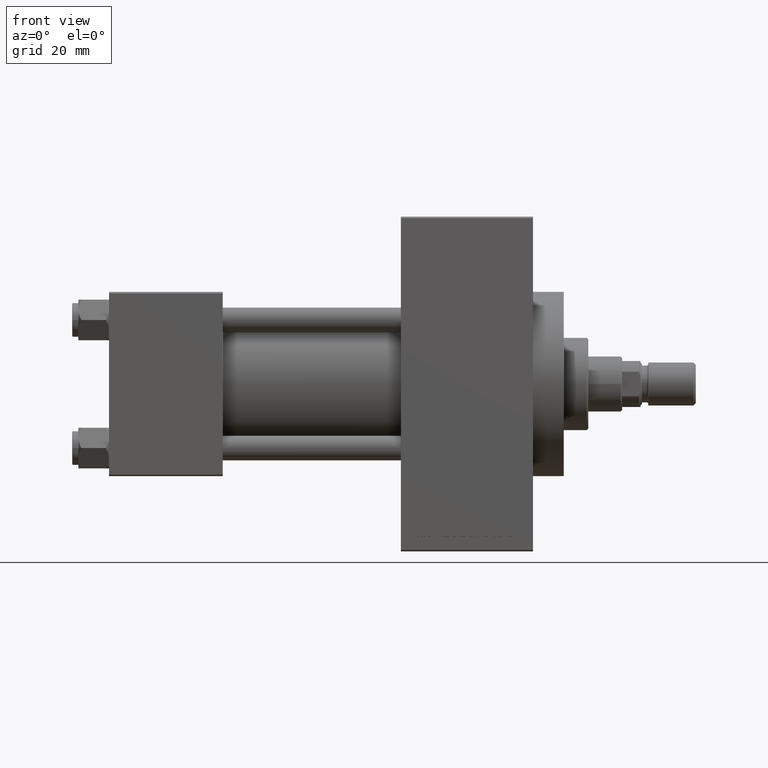
[diagram: clean part render]
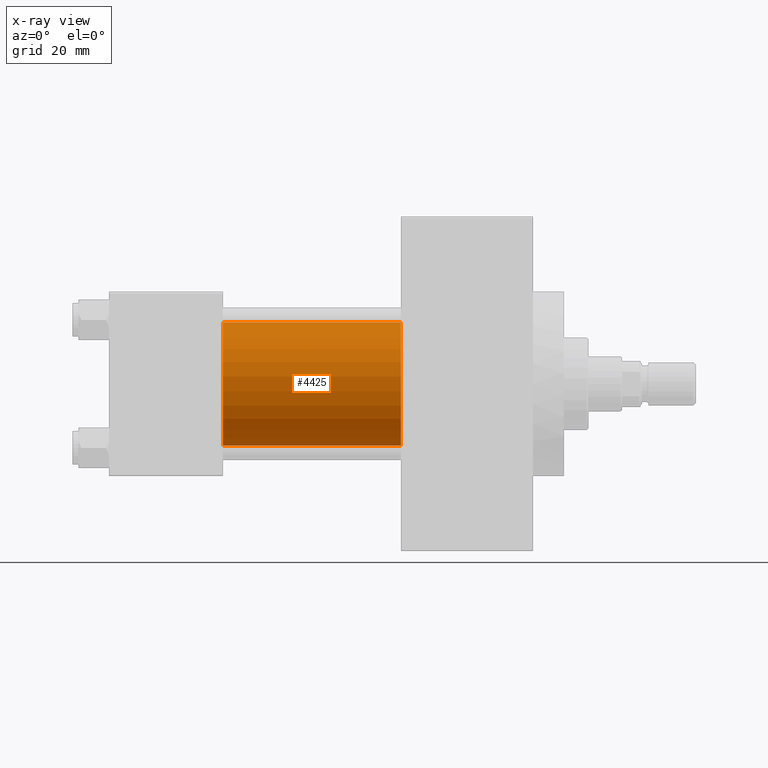
[diagram: x-ray — body ghosted, one internal face saturated and labeled with its STEP entity id]
A machine part, front view, then the same camera in x-ray: the body is ghosted and one INTERNAL B-rep face — a face not visible from any outside direction — is saturated and labeled: STEP entity #4425.
In plain terms, the highlighted cylindrical surface (partial cylindrical patch) has radius 20 mm, axis along (-1, -0, -0).
Its self-contained STEP definition (entity closure, byte-faithful):
#2749 = DIRECTION ( 'NONE',  ( 0.000000000000000000, 0.000000000000000000, -1.000000000000000000 ) ) ;
#3018 = AXIS2_PLACEMENT_3D ( 'NONE', #31827, #24316, #2749 ) ;
#3654 = DIRECTION ( 'NONE',  ( 0.000000000000000000, 0.000000000000000000, 1.000000000000000000 ) ) ;
#3899 = CARTESIAN_POINT ( 'NONE',  ( 95.00000000000000000, -2.602085213965210642E-15, 0.000000000000000000 ) ) ;
#4146 = EDGE_CURVE ( 'NONE', #38251, #31890, #18405, .T. ) ;
#4425 = ADVANCED_FACE ( 'NONE', ( #39983 ), #25446, .F. ) ;
#6608 = ORIENTED_EDGE ( 'NONE', *, *, #27748, .F. ) ;
#6622 = CARTESIAN_POINT ( 'NONE',  ( 95.00000000000000000, -2.602085213965210642E-15, 20.00000000000000000 ) ) ;
#7230 = VERTEX_POINT ( 'NONE', #44675 ) ;
#8568 = VECTOR ( 'NONE', #10489, 1000.000000000000000 ) ;
#9044 = VECTOR ( 'NONE', #22895, 1000.000000000000000 ) ;
#10489 = DIRECTION ( 'NONE',  ( -1.000000000000000000, -0.000000000000000000, -0.000000000000000000 ) ) ;
#12197 = CARTESIAN_POINT ( 'NONE',  ( 37.00000000000000000, -2.602085213965210642E-15, 20.00000000000000000 ) ) ;
#14121 = EDGE_CURVE ( 'NONE', #31890, #7230, #26550, .T. ) ;
#14776 = DIRECTION ( 'NONE',  ( -1.000000000000000000, -0.000000000000000000, -0.000000000000000000 ) ) ;
#15246 = DIRECTION ( 'NONE',  ( 1.000000000000000000, 0.000000000000000000, 0.000000000000000000 ) ) ;
#17097 = AXIS2_PLACEMENT_3D ( 'NONE', #25927, #15246, #40465 ) ;
#18405 = CIRCLE ( 'NONE', #3018, 20.00000000000000000 ) ;
#20391 = CARTESIAN_POINT ( 'NONE',  ( 95.00000000000000000, -1.527916156705046464E-16, -20.00000000000000000 ) ) ;
#22895 = DIRECTION ( 'NONE',  ( -1.000000000000000000, -0.000000000000000000, -0.000000000000000000 ) ) ;
#23708 = EDGE_LOOP ( 'NONE', ( #25210, #36655, #6608, #31749 ) ) ;
#24316 = DIRECTION ( 'NONE',  ( 1.000000000000000000, 0.000000000000000000, 0.000000000000000000 ) ) ;
#25210 = ORIENTED_EDGE ( 'NONE', *, *, #4146, .T. ) ;
#25446 = CYLINDRICAL_SURFACE ( 'NONE', #33931, 20.00000000000000000 ) ;
#25500 = LINE ( 'NONE', #6622, #8568 ) ;
#25927 = CARTESIAN_POINT ( 'NONE',  ( 37.00000000000000000, -2.602085213965210642E-15, 0.000000000000000000 ) ) ;
#26550 = LINE ( 'NONE', #41561, #9044 ) ;
#27278 = EDGE_CURVE ( 'NONE', #38251, #45120, #25500, .T. ) ;
#27748 = EDGE_CURVE ( 'NONE', #45120, #7230, #38766, .T. ) ;
#31749 = ORIENTED_EDGE ( 'NONE', *, *, #27278, .F. ) ;
#31827 = CARTESIAN_POINT ( 'NONE',  ( 95.00000000000000000, -2.602085213965210642E-15, 0.000000000000000000 ) ) ;
#31890 = VERTEX_POINT ( 'NONE', #20391 ) ;
#33931 = AXIS2_PLACEMENT_3D ( 'NONE', #3899, #14776, #3654 ) ;
#36655 = ORIENTED_EDGE ( 'NONE', *, *, #14121, .T. ) ;
#38251 = VERTEX_POINT ( 'NONE', #41439 ) ;
#38766 = CIRCLE ( 'NONE', #17097, 20.00000000000000000 ) ;
#39983 = FACE_OUTER_BOUND ( 'NONE', #23708, .T. ) ;
#40465 = DIRECTION ( 'NONE',  ( 0.000000000000000000, 0.000000000000000000, -1.000000000000000000 ) ) ;
#41439 = CARTESIAN_POINT ( 'NONE',  ( 95.00000000000000000, -2.602085213965210642E-15, 20.00000000000000000 ) ) ;
#41561 = CARTESIAN_POINT ( 'NONE',  ( 95.00000000000000000, -1.527916156705046464E-16, -20.00000000000000000 ) ) ;
#44675 = CARTESIAN_POINT ( 'NONE',  ( 37.00000000000000000, -1.527916156705046464E-16, -20.00000000000000000 ) ) ;
#45120 = VERTEX_POINT ( 'NONE', #12197 ) ;